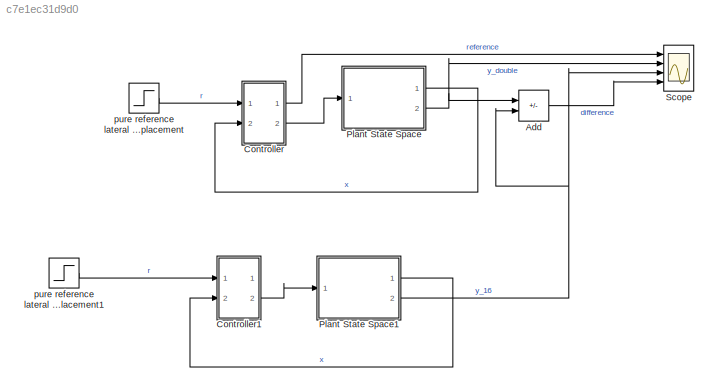
MODEL slx_c7e1ec31d9d0
KIND model
CONFIG AbsTol = auto
CONFIG EnableMultiTasking = off
CONFIG FixedStep = auto
CONFIG MaxStep = auto
CONFIG MinStep = auto
CONFIG RelTol = 1e-3
CONFIG SampleTimeConstraint = Unconstrained
CONFIG SolverName = VariableStepAuto
CONFIG StartTime = 0.0
CONFIG StopTime = 10
WORKSPACE source: MATLAB code (in-file)
WORKSPACE bits = 16
WORKSPACE a = 0.5
WORKSPACE b = 1
WORKSPACE gamma = a/b  (= 0.5)
WORKSPACE code: A = [0, 1; 0, 0];
WORKSPACE code: B = [gamma; 1];
WORKSPACE C = [1, 0]
WORKSPACE D = 0
WORKSPACE k1 = sfi(1, bits)
WORKSPACE k2 = sfi(1.6, bits)
WORKSPACE K = [k1, k2]
WORKSPACE kr = sfi(1, bits)
WORKSPACE w_c = sqrt(k1)
WORKSPACE zi = (k2 + gamma*w_c^2)/(2*w_c)
BLOCK [Sum] Add
  IconShape = rectangular
  Inputs = +-
  Ports = [2, 1]
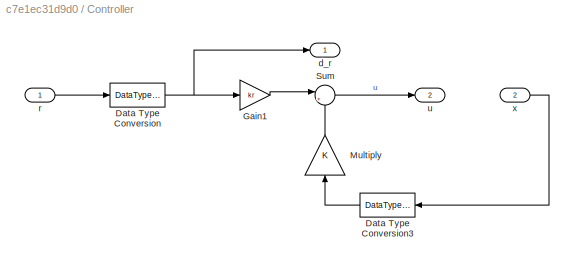
BLOCK [SubSystem] Controller
  Ports = [2, 2]
  RequestExecContextInheritance = off
BLOCK [DataTypeConversion] Controller/Data Type Conversion
  OutDataTypeStr = double
  OutMax = [5]
  OutMin = [-5]
  RndMeth = Floor
  SaturateOnIntegerOverflow = off
BLOCK [DataTypeConversion] Controller/Data Type Conversion3
  NameLocation = top
  OutDataTypeStr = double
  OutMax = [5]
  OutMin = [-5]
  RndMeth = Floor
  SaturateOnIntegerOverflow = off
BLOCK [Gain] Controller/Gain1
  Gain = kr
BLOCK [Gain] Controller/Multiply
  Gain = K
  Multiplication = Matrix(K*u)
  NameLocation = right
BLOCK [Sum] Controller/Sum
  Inputs = |+-
  Ports = [2, 1]
BLOCK [Outport] Controller/d_r
BLOCK [Inport] Controller/r
BLOCK [Outport] Controller/u
  Port = 2
BLOCK [Inport] Controller/x
  Port = 2
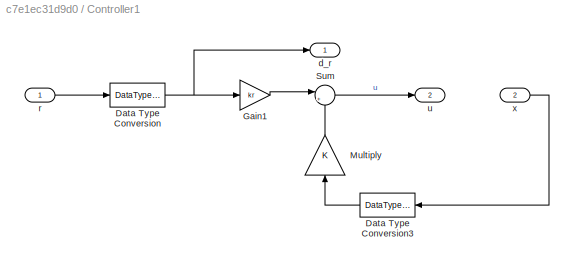
BLOCK [SubSystem] Controller1
  Ports = [2, 2]
  RequestExecContextInheritance = off
BLOCK [DataTypeConversion] Controller1/Data Type Conversion
  OutDataTypeStr = fixdt(1,16)
  OutMax = [5]
  OutMin = [-5]
  RndMeth = Floor
  SaturateOnIntegerOverflow = off
BLOCK [DataTypeConversion] Controller1/Data Type Conversion3
  NameLocation = top
  OutDataTypeStr = fixdt(1,16)
  OutMax = [5]
  OutMin = [-5]
  RndMeth = Floor
  SaturateOnIntegerOverflow = off
BLOCK [Gain] Controller1/Gain1
  Gain = kr
BLOCK [Gain] Controller1/Multiply
  Gain = K
  Multiplication = Matrix(K*u)
  NameLocation = right
BLOCK [Sum] Controller1/Sum
  Inputs = |+-
  Ports = [2, 1]
BLOCK [Outport] Controller1/d_r
BLOCK [Inport] Controller1/r
BLOCK [Outport] Controller1/u
  Port = 2
BLOCK [Inport] Controller1/x
  Port = 2
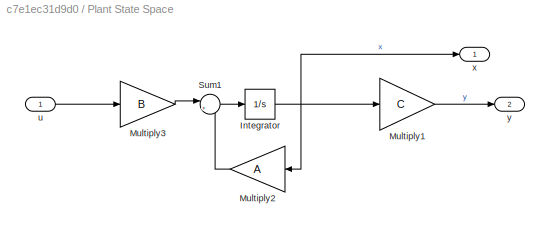
BLOCK [SubSystem] Plant State Space
  Ports = [1, 2]
  RequestExecContextInheritance = off
BLOCK [Integrator] Plant State Space/Integrator
  Ports = [1, 1]
BLOCK [Gain] Plant State Space/Multiply1
  Gain = C
  Multiplication = Matrix(K*u)
BLOCK [Gain] Plant State Space/Multiply2
  Gain = A
  Multiplication = Matrix(K*u)
  NameLocation = top
BLOCK [Gain] Plant State Space/Multiply3
  Gain = B
BLOCK [Sum] Plant State Space/Sum1
  Inputs = |++
  Ports = [2, 1]
BLOCK [Inport] Plant State Space/u
BLOCK [Outport] Plant State Space/x
BLOCK [Outport] Plant State Space/y
  Port = 2
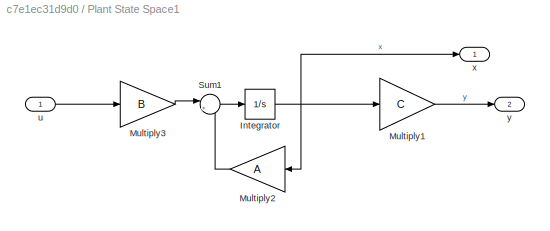
BLOCK [SubSystem] Plant State Space1
  Ports = [1, 2]
  RequestExecContextInheritance = off
BLOCK [Integrator] Plant State Space1/Integrator
  Ports = [1, 1]
BLOCK [Gain] Plant State Space1/Multiply1
  Gain = C
  Multiplication = Matrix(K*u)
BLOCK [Gain] Plant State Space1/Multiply2
  Gain = A
  Multiplication = Matrix(K*u)
  NameLocation = top
BLOCK [Gain] Plant State Space1/Multiply3
  Gain = B
BLOCK [Sum] Plant State Space1/Sum1
  Inputs = |++
  Ports = [2, 1]
BLOCK [Inport] Plant State Space1/u
BLOCK [Outport] Plant State Space1/x
BLOCK [Outport] Plant State Space1/y
  Port = 2
BLOCK [Scope] Scope
  Floating = off
  NumInputPorts = 4
  Ports = [4]
  ScopeSpecificationString = Simulink.scopes.TimeScopeBlockCfg('CurrentConfiguration', extmgr.ConfigurationSet(extmgr.Configuration('Core','General UI',true,'FigureColor',[1 1 1]),extmgr.Configuration('Core','Source UI',true),extmgr.Configuration('Sources','WiredSimulink',true),extmgr.Configuration('Visuals','Time Domain',true,'SerializedDisplays',{struct('MinYLimReal','-0.00019','MaxYLimReal','0.00007','YLabelReal','','MinYL...<+2092ch>
BLOCK [Step] pure reference lateral displacement
  SampleTime = 0
BLOCK [Step] pure reference lateral displacement1
  SampleTime = 0
LINE Add:1 -> Scope:4
LINE Controller/Data Type Conversion3:1 -> Controller/Multiply:1
NET Controller/Data Type Conversion:1 -> Controller/Gain1:1, Controller/d_r:1
LINE Controller/Gain1:1 -> Controller/Sum:1
LINE Controller/Multiply:1 -> Controller/Sum:2
LINE Controller/Sum:1 -> Controller/u:1
LINE Controller/r:1 -> Controller/Data Type Conversion:1
LINE Controller/x:1 -> Controller/Data Type Conversion3:1
LINE Controller1/Data Type Conversion3:1 -> Controller1/Multiply:1
NET Controller1/Data Type Conversion:1 -> Controller1/Gain1:1, Controller1/d_r:1
LINE Controller1/Gain1:1 -> Controller1/Sum:1
LINE Controller1/Multiply:1 -> Controller1/Sum:2
LINE Controller1/Sum:1 -> Controller1/u:1
LINE Controller1/r:1 -> Controller1/Data Type Conversion:1
LINE Controller1/x:1 -> Controller1/Data Type Conversion3:1
LINE Controller1:2 -> Plant State Space1:1
LINE Controller:1 -> Scope:1
LINE Controller:2 -> Plant State Space:1
NET Plant State Space/Integrator:1 -> Plant State Space/Multiply1:1, Plant State Space/Multiply2:1, Plant State Space/x:1
LINE Plant State Space/Multiply1:1 -> Plant State Space/y:1
LINE Plant State Space/Multiply2:1 -> Plant State Space/Sum1:2
LINE Plant State Space/Multiply3:1 -> Plant State Space/Sum1:1
LINE Plant State Space/Sum1:1 -> Plant State Space/Integrator:1
LINE Plant State Space/u:1 -> Plant State Space/Multiply3:1
NET Plant State Space1/Integrator:1 -> Plant State Space1/Multiply1:1, Plant State Space1/Multiply2:1, Plant State Space1/x:1
LINE Plant State Space1/Multiply1:1 -> Plant State Space1/y:1
LINE Plant State Space1/Multiply2:1 -> Plant State Space1/Sum1:2
LINE Plant State Space1/Multiply3:1 -> Plant State Space1/Sum1:1
LINE Plant State Space1/Sum1:1 -> Plant State Space1/Integrator:1
LINE Plant State Space1/u:1 -> Plant State Space1/Multiply3:1
LINE Plant State Space1:1 -> Controller1:2
NET Plant State Space1:2 -> Add:2, Scope:3
LINE Plant State Space:1 -> Controller:2
NET Plant State Space:2 -> Add:1, Scope:2
LINE pure reference lateral displacement1:1 -> Controller1:1
LINE pure reference lateral displacement:1 -> Controller:1
note: NET lines group one-source signal fan-out (src -> all destinations, sorted); 1:1 wires keep LINE
